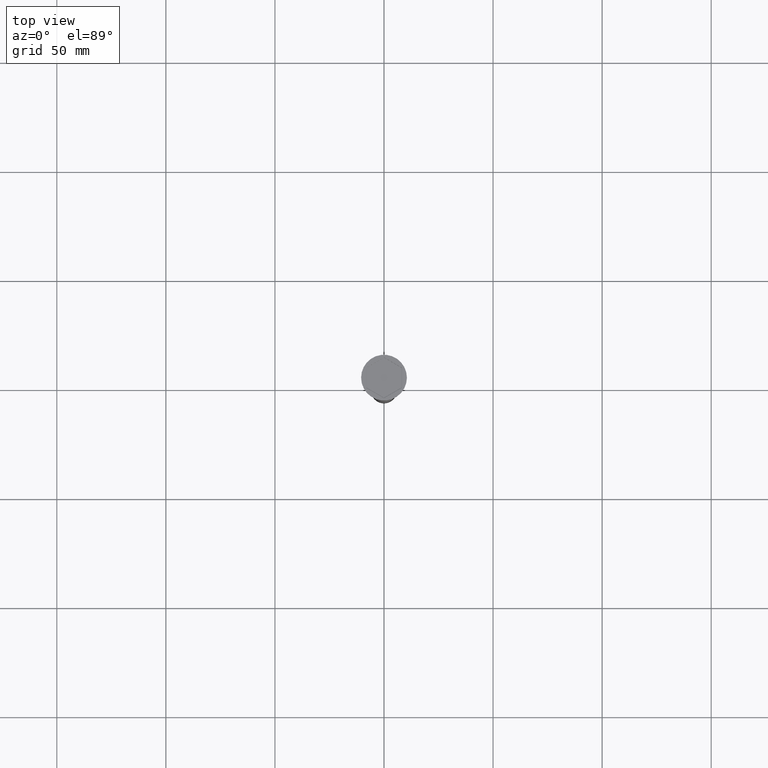
[diagram: clean part render]
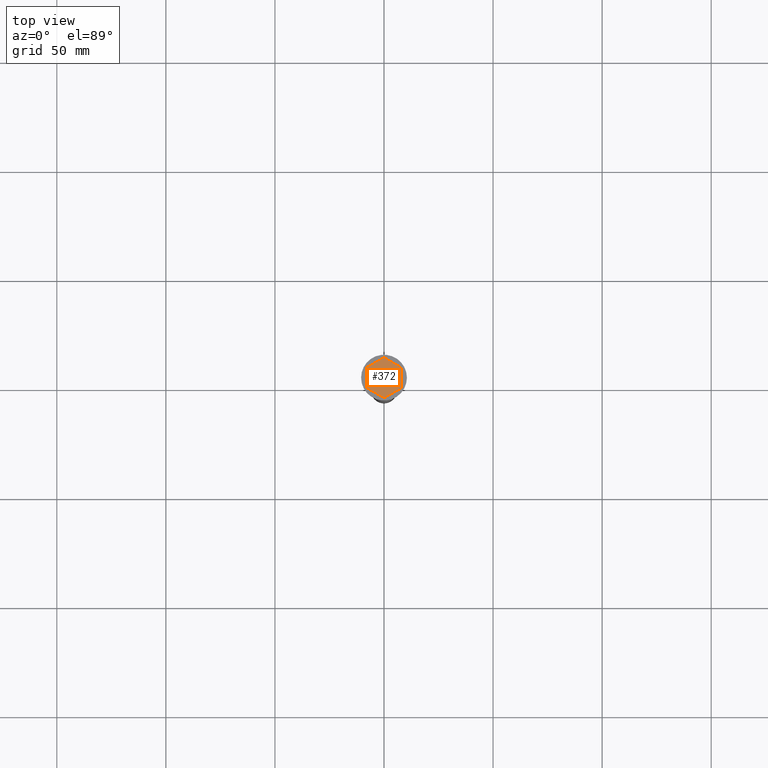
[diagram: same view with one face highlighted and labeled with its STEP entity id]
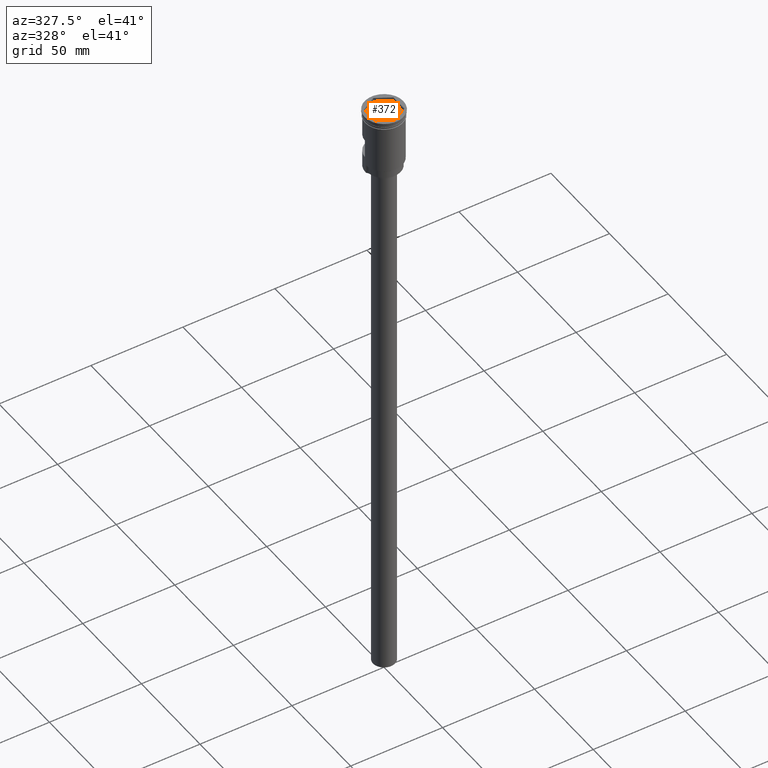
[diagram: same view with one face highlighted and labeled with its STEP entity id]
A machine part, top view. The second image highlights one B-rep face of the part: STEP entity #372.
A second angle (auxiliary view) of the same face is appended — the face is thin or edge-on in the first view.
In plain terms, the highlighted planar face has unit normal (-0, 0, 1).
Its self-contained STEP definition (entity closure, byte-faithful):
#57 = LINE ( 'NONE', #565, #1239 ) ;
#170 = VECTOR ( 'NONE', #832, 999.9999999999998863 ) ;
#269 = DIRECTION ( 'NONE',  ( -0.000000000000000000, 0.000000000000000000, 1.000000000000000000 ) ) ;
#270 = AXIS2_PLACEMENT_3D ( 'NONE', #1507, #269, #1121 ) ;
#274 = VERTEX_POINT ( 'NONE', #839 ) ;
#286 = CARTESIAN_POINT ( 'NONE',  ( -8.000000000000000000, 0.000000000000000000, -2.000000000000000000 ) ) ;
#358 = VECTOR ( 'NONE', #640, 1000.000000000000000 ) ;
#372 = ADVANCED_FACE ( 'NONE', ( #627 ), #1252, .T. ) ;
#375 = ORIENTED_EDGE ( 'NONE', *, *, #474, .T. ) ;
#394 = LINE ( 'NONE', #286, #358 ) ;
#431 = CARTESIAN_POINT ( 'NONE',  ( 8.000000000000000000, -4.618802153517008513, -2.000000000000000000 ) ) ;
#474 = EDGE_CURVE ( 'NONE', #1581, #274, #1013, .T. ) ;
#509 = VERTEX_POINT ( 'NONE', #431 ) ;
#543 = CARTESIAN_POINT ( 'NONE',  ( -8.000000000000000000, -4.618802153517008513, -2.000000000000000000 ) ) ;
#549 = ORIENTED_EDGE ( 'NONE', *, *, #1165, .T. ) ;
#565 = CARTESIAN_POINT ( 'NONE',  ( 4.000000000000000000, -6.928203230275510549, -2.000000000000000000 ) ) ;
#575 = LINE ( 'NONE', #1586, #170 ) ;
#601 = CARTESIAN_POINT ( 'NONE',  ( 8.000000000000000000, 0.000000000000000000, -2.000000000000000000 ) ) ;
#623 = CARTESIAN_POINT ( 'NONE',  ( 3.999999999999998224, 6.928203230275506108, -2.000000000000000000 ) ) ;
#627 = FACE_OUTER_BOUND ( 'NONE', #1177, .T. ) ;
#636 = CARTESIAN_POINT ( 'NONE',  ( 0.000000000000000000, 9.237604307034009921, -2.000000000000000000 ) ) ;
#640 = DIRECTION ( 'NONE',  ( 0.000000000000000000, -1.000000000000000000, 0.000000000000000000 ) ) ;
#725 = EDGE_CURVE ( 'NONE', #509, #1144, #1461, .T. ) ;
#791 = VECTOR ( 'NONE', #1575, 1000.000000000000000 ) ;
#832 = DIRECTION ( 'NONE',  ( 0.8660254037844387076, -0.4999999999999999445, 0.000000000000000000 ) ) ;
#839 = CARTESIAN_POINT ( 'NONE',  ( -8.000000000000000000, 4.618802153517002296, -2.000000000000000000 ) ) ;
#850 = DIRECTION ( 'NONE',  ( -0.8660254037844387076, 0.5000000000000001110, 0.000000000000000000 ) ) ;
#873 = VECTOR ( 'NONE', #1136, 999.9999999999998863 ) ;
#908 = CARTESIAN_POINT ( 'NONE',  ( -3.999999999999998224, 6.928203230275506108, -2.000000000000000000 ) ) ;
#930 = ORIENTED_EDGE ( 'NONE', *, *, #992, .T. ) ;
#934 = ORIENTED_EDGE ( 'NONE', *, *, #725, .T. ) ;
#992 = EDGE_CURVE ( 'NONE', #274, #1006, #394, .T. ) ;
#1006 = VERTEX_POINT ( 'NONE', #543 ) ;
#1013 = LINE ( 'NONE', #908, #873 ) ;
#1062 = DIRECTION ( 'NONE',  ( 0.8660254037844387076, 0.4999999999999999445, 0.000000000000000000 ) ) ;
#1121 = DIRECTION ( 'NONE',  ( 1.000000000000000000, 0.000000000000000000, 0.000000000000000000 ) ) ;
#1136 = DIRECTION ( 'NONE',  ( -0.8660254037844387076, -0.5000000000000001110, 0.000000000000000000 ) ) ;
#1144 = VERTEX_POINT ( 'NONE', #1169 ) ;
#1165 = EDGE_CURVE ( 'NONE', #1298, #509, #57, .T. ) ;
#1169 = CARTESIAN_POINT ( 'NONE',  ( 8.000000000000000000, 4.618802153517003184, -2.000000000000000000 ) ) ;
#1177 = EDGE_LOOP ( 'NONE', ( #1589, #375, #930, #1306, #549, #934 ) ) ;
#1204 = EDGE_CURVE ( 'NONE', #1006, #1298, #575, .T. ) ;
#1214 = VECTOR ( 'NONE', #850, 999.9999999999998863 ) ;
#1239 = VECTOR ( 'NONE', #1062, 999.9999999999998863 ) ;
#1252 = PLANE ( 'NONE',  #270 ) ;
#1298 = VERTEX_POINT ( 'NONE', #1410 ) ;
#1306 = ORIENTED_EDGE ( 'NONE', *, *, #1204, .T. ) ;
#1410 = CARTESIAN_POINT ( 'NONE',  ( 0.000000000000000000, -9.237604307034013473, -2.000000000000000000 ) ) ;
#1459 = EDGE_CURVE ( 'NONE', #1144, #1581, #1491, .T. ) ;
#1461 = LINE ( 'NONE', #601, #791 ) ;
#1491 = LINE ( 'NONE', #623, #1214 ) ;
#1507 = CARTESIAN_POINT ( 'NONE',  ( 0.000000000000000000, 0.000000000000000000, -2.000000000000000000 ) ) ;
#1575 = DIRECTION ( 'NONE',  ( 0.000000000000000000, 1.000000000000000000, -0.000000000000000000 ) ) ;
#1581 = VERTEX_POINT ( 'NONE', #636 ) ;
#1586 = CARTESIAN_POINT ( 'NONE',  ( -4.000000000000000000, -6.928203230275510549, -2.000000000000000000 ) ) ;
#1589 = ORIENTED_EDGE ( 'NONE', *, *, #1459, .T. ) ;